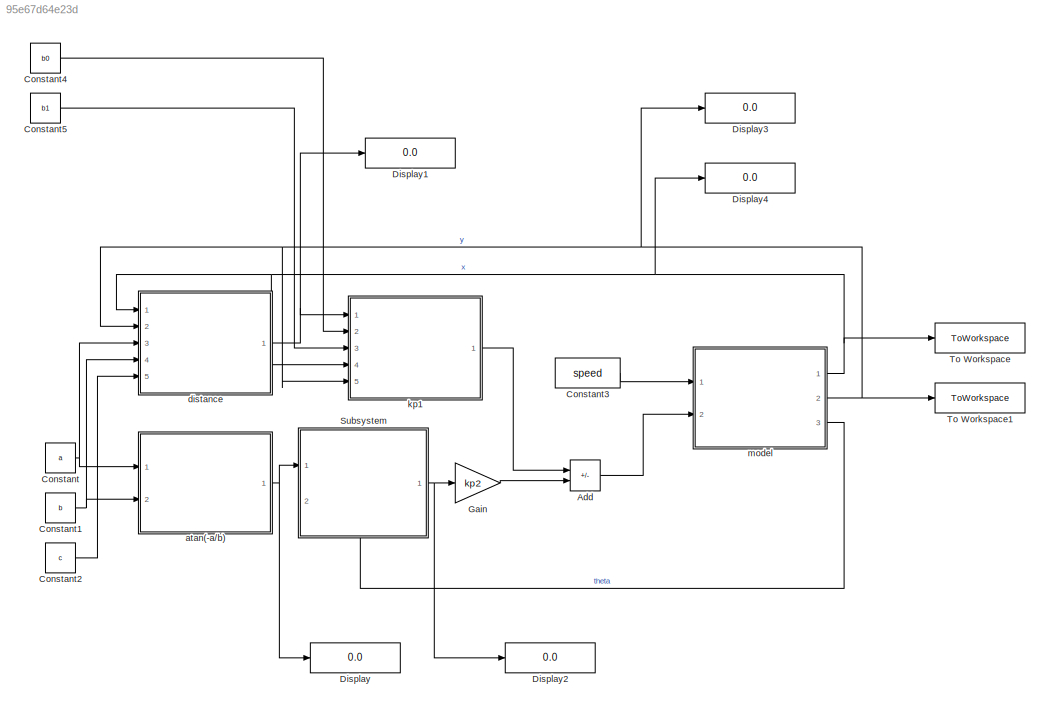
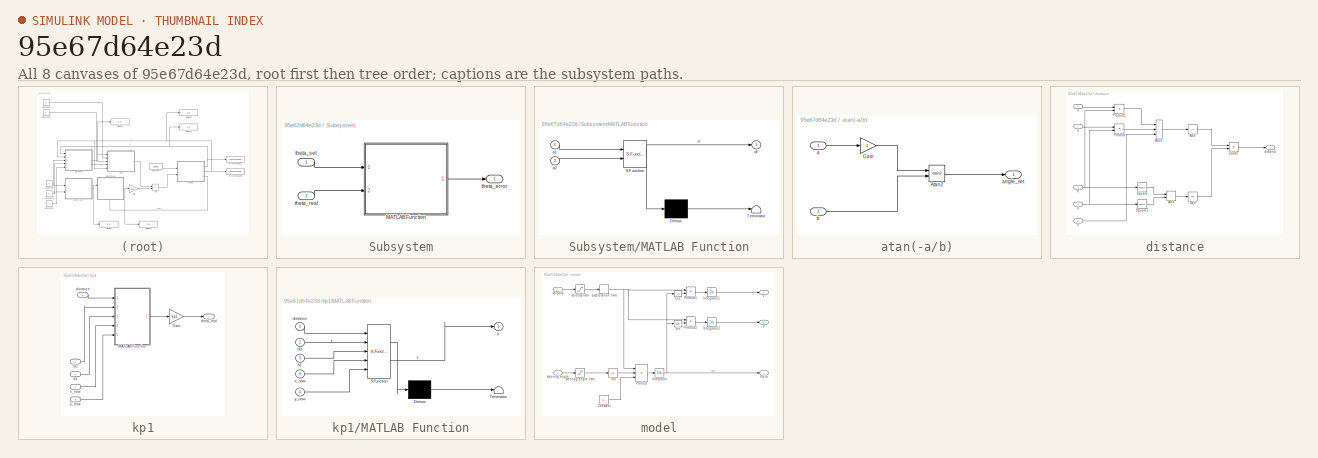
[diagram: thumbnail index - all 8 canvases of the model, root first then tree order]
MODEL slx_95e67d64e23d
KIND model
CONFIG AbsTol = auto
CONFIG EnableMultiTasking = off
CONFIG FixedStep = 0.1
CONFIG MaxStep = auto
CONFIG MinStep = auto
CONFIG RelTol = 1e-3
CONFIG SampleTimeConstraint = Unconstrained
CONFIG Solver = ode4
CONFIG SolverName = ode4
CONFIG StartTime = 0.0
CONFIG StopTime = 10.0
BLOCK [Sum] Add
  IconShape = rectangular
  Inputs = -+
  Ports = [2, 1]
BLOCK [Constant] Constant
  Value = a
BLOCK [Constant] Constant1
  Value = b
BLOCK [Constant] Constant2
  Value = c
BLOCK [Constant] Constant3
  Value = speed
BLOCK [Constant] Constant4
  Value = b0
BLOCK [Constant] Constant5
  Value = b1
BLOCK [Display] Display
  Decimation = 1
  Ports = [1]
BLOCK [Display] Display1
  Decimation = 1
  Ports = [1]
BLOCK [Display] Display2
  Decimation = 1
  Ports = [1]
BLOCK [Display] Display3
  Decimation = 1
  Ports = [1]
BLOCK [Display] Display4
  Decimation = 1
  Ports = [1]
BLOCK [Gain] Gain
  Gain = kp2
BLOCK [SubSystem] Subsystem
  PortSchema = {"entries":[{"content":{"sides":[{"content":{"connectorIds":["In1"]},"type":"ConnectorPlacement.EquallySpacedRectSide","uuid":"fc3d2d42-6b75-4455-93d0-24c477eba1e2"},{"content":{"connectorIds":["Out1"],"side":"RIGHT"},"type":"ConnectorPlacement.EquallySpacedRectSide","uuid":"640ab7b6-8e5c-42d1-9d7a-31c2e9c3df8c"},{"content":{"connectorIds":[],"side":"TOP"},"type":"ConnectorPlacement.EquallySpacedR...<+391ch>
  Ports = [2, 1]
  RequestExecContextInheritance = off
BLOCK [SubSystem] Subsystem/MATLAB Function
  ErrorFcn = Stateflow.Translate.translate
  PermitHierarchicalResolution = ExplicitOnly
  Ports = [2, 1]
  RequestExecContextInheritance = off
  SFBlockType = MATLAB Function
  TreatAsAtomicUnit = on
BLOCK [Demux] Subsystem/MATLAB Function/ Demux 
  Outputs = 1
  Ports = [1, 1]
BLOCK [S-Function] Subsystem/MATLAB Function/ SFunction 
  EnableBusSupport = on
  FunctionName = sf_sfun
  PortCounts = [2 2]
  Ports = [2, 2]
  SFcnIsStateOwnerBlock = off
  SFunctionDeploymentMode = off
  Tag = Stateflow S-Function 2
BLOCK [Terminator] Subsystem/MATLAB Function/ Terminator 
BLOCK [Inport] Subsystem/MATLAB Function/a1
BLOCK [Inport] Subsystem/MATLAB Function/a2
  Port = 2
BLOCK [Outport] Subsystem/MATLAB Function/af
BLOCK [Outport] Subsystem/theta_error
BLOCK [Inport] Subsystem/theta_real
  Port = 2
BLOCK [Inport] Subsystem/theta_set
BLOCK [ToWorkspace] To Workspace
  FixptAsFi = on
  MaxDataPoints = inf
  Ports = [1]
  SampleTime = -1
  Save2DSignal = 2-D array (concatenate along first dimension)
  VariableName = x
BLOCK [ToWorkspace] To Workspace1
  FixptAsFi = on
  MaxDataPoints = inf
  Ports = [1]
  SampleTime = -1
  Save2DSignal = 2-D array (concatenate along first dimension)
  VariableName = y
BLOCK [SubSystem] atan(-a//b)
  Ports = [2, 1]
  RequestExecContextInheritance = off
BLOCK [Trigonometry] atan(-a//b)/Atan2
  Operator = atan2
  OutputSignalType = real
  Ports = [2, 1]
BLOCK [Gain] atan(-a//b)/Gain
  Gain = -1
BLOCK [Inport] atan(-a//b)/a
BLOCK [Outport] atan(-a//b)/angle_set
BLOCK [Inport] atan(-a//b)/b
  Port = 2
BLOCK [SubSystem] distance
  Ports = [5, 1]
  RequestExecContextInheritance = off
BLOCK [Abs] distance/Abs
  SaturateOnIntegerOverflow = off
BLOCK [Sum] distance/Add
  IconShape = rectangular
  Ports = [2, 1]
BLOCK [Sum] distance/Add1
  IconShape = rectangular
  Inputs = +++
  Ports = [3, 1]
BLOCK [Product] distance/Divide
  Inputs = */
  Ports = [2, 1]
BLOCK [Product] distance/Product
  Ports = [2, 1]
BLOCK [Product] distance/Product1
  Ports = [2, 1]
BLOCK [Sqrt] distance/Sqrt
BLOCK [Math] distance/Square
  Operator = square
  Ports = [1, 1]
BLOCK [Math] distance/Square1
  Operator = square
  Ports = [1, 1]
BLOCK [Inport] distance/a
  Port = 3
BLOCK [Inport] distance/b
  Port = 4
BLOCK [Inport] distance/c
  Port = 5
BLOCK [Outport] distance/distance
BLOCK [Inport] distance/x
BLOCK [Inport] distance/y
  Port = 2
BLOCK [SubSystem] kp1
  Ports = [5, 1]
  RequestExecContextInheritance = off
BLOCK [Gain] kp1/Gain
  Gain = kp1
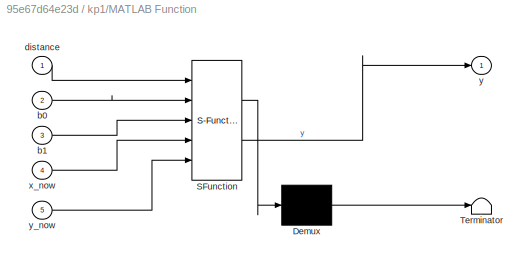
BLOCK [SubSystem] kp1/MATLAB Function
  ErrorFcn = Stateflow.Translate.translate
  PermitHierarchicalResolution = ExplicitOnly
  Ports = [5, 1]
  RequestExecContextInheritance = off
  SFBlockType = MATLAB Function
  TreatAsAtomicUnit = on
BLOCK [Demux] kp1/MATLAB Function/ Demux 
  Outputs = 1
  Ports = [1, 1]
BLOCK [S-Function] kp1/MATLAB Function/ SFunction 
  EnableBusSupport = on
  FunctionName = sf_sfun
  PortCounts = [5 2]
  Ports = [5, 2]
  SFcnIsStateOwnerBlock = off
  SFunctionDeploymentMode = off
  Tag = Stateflow S-Function 3
BLOCK [Terminator] kp1/MATLAB Function/ Terminator 
BLOCK [Inport] kp1/MATLAB Function/b0
  Port = 2
BLOCK [Inport] kp1/MATLAB Function/b1
  Port = 3
BLOCK [Inport] kp1/MATLAB Function/distance
BLOCK [Inport] kp1/MATLAB Function/x_now
  Port = 4
BLOCK [Outport] kp1/MATLAB Function/y
BLOCK [Inport] kp1/MATLAB Function/y_now
  Port = 5
BLOCK [Inport] kp1/b0
  Port = 2
BLOCK [Inport] kp1/b1
  Port = 3
BLOCK [Inport] kp1/distance
BLOCK [Outport] kp1/theta_real
BLOCK [Inport] kp1/x_now
  Port = 4
BLOCK [Inport] kp1/y_now
  Port = 5
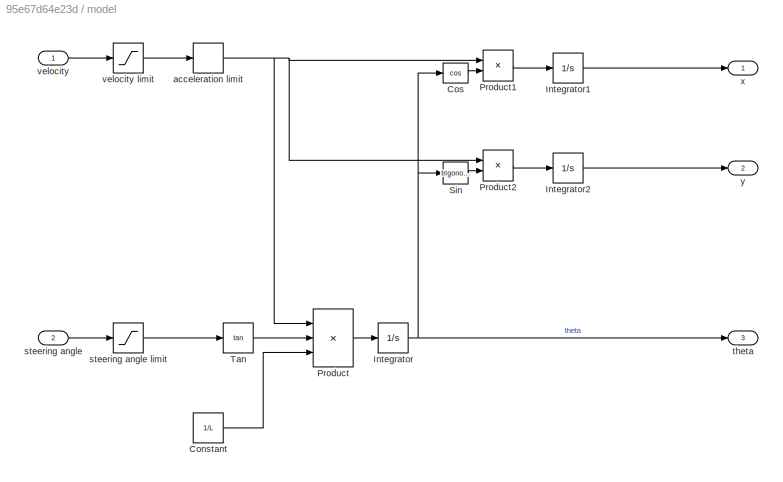
BLOCK [SubSystem] model
  Ports = [2, 3]
  RequestExecContextInheritance = off
BLOCK [Constant] model/Constant
  Value = 1/L
BLOCK [Trigonometry] model/Cos
  Operator = cos
  OutputSignalType = real
  Ports = [1, 1]
BLOCK [Integrator] model/Integrator
  InitialCondition = theta_start
  Ports = [1, 1]
BLOCK [Integrator] model/Integrator1
  InitialCondition = x_start
  Ports = [1, 1]
BLOCK [Integrator] model/Integrator2
  InitialCondition = y_start
  Ports = [1, 1]
BLOCK [Product] model/Product
  Inputs = 3
  Ports = [3, 1]
BLOCK [Product] model/Product1
  Ports = [2, 1]
BLOCK [Product] model/Product2
  Ports = [2, 1]
BLOCK [Trigonometry] model/Sin
  OutputSignalType = real
  Ports = [1, 1]
BLOCK [Trigonometry] model/Tan
  Operator = tan
  OutputSignalType = real
  Ports = [1, 1]
BLOCK [RateLimiter] model/acceleration limit
  SampleTimeMode = inherited
BLOCK [Inport] model/steering angle
  Port = 2
BLOCK [Saturate] model/steering angle limit
  LinearizeAsGain = off
  LowerLimit = -1
  UpperLimit = 1
BLOCK [Outport] model/theta
  Port = 3
BLOCK [Inport] model/velocity
BLOCK [Saturate] model/velocity limit
  LowerLimit = -2
  UpperLimit = 2
BLOCK [Outport] model/x
BLOCK [Outport] model/y
  Port = 2
LINE Add:1 -> model:2
NET Constant1:1 -> atan(-a//b):2, distance:4
LINE Constant2:1 -> distance:5
LINE Constant3:1 -> model:1
LINE Constant4:1 -> kp1:2
LINE Constant5:1 -> kp1:3
NET Constant:1 -> atan(-a//b):1, distance:3
LINE Gain:1 -> Add:2
LINE Subsystem/MATLAB Function:1 -> Subsystem/theta_error:1
LINE Subsystem/theta_real:1 -> Subsystem/MATLAB Function:2
LINE Subsystem/theta_set:1 -> Subsystem/MATLAB Function:1
NET Subsystem:1 -> Display2:1, Gain:1
LINE atan(-a//b)/Atan2:1 -> atan(-a//b)/angle_set:1
LINE atan(-a//b)/Gain:1 -> atan(-a//b)/Atan2:1
LINE atan(-a//b)/a:1 -> atan(-a//b)/Gain:1
LINE atan(-a//b)/b:1 -> atan(-a//b)/Atan2:2
NET atan(-a//b):1 -> Display:1, Subsystem:1
LINE distance/Abs:1 -> distance/Divide:1
LINE distance/Add1:1 -> distance/Abs:1
LINE distance/Add:1 -> distance/Sqrt:1
LINE distance/Divide:1 -> distance/distance:1
LINE distance/Product1:1 -> distance/Add1:1
LINE distance/Product:1 -> distance/Add1:2
LINE distance/Sqrt:1 -> distance/Divide:2
LINE distance/Square1:1 -> distance/Add:2
LINE distance/Square:1 -> distance/Add:1
NET distance/a:1 -> distance/Product1:2, distance/Square:1
NET distance/b:1 -> distance/Product:2, distance/Square1:1
LINE distance/c:1 -> distance/Add1:3
LINE distance/x:1 -> distance/Product1:1
LINE distance/y:1 -> distance/Product:1
NET distance:1 -> Display1:1, kp1:1
LINE kp1/Gain:1 -> kp1/theta_real:1
LINE kp1/MATLAB Function:1 -> kp1/Gain:1
LINE kp1/b0:1 -> kp1/MATLAB Function:2
LINE kp1/b1:1 -> kp1/MATLAB Function:3
LINE kp1/distance:1 -> kp1/MATLAB Function:1
LINE kp1/x_now:1 -> kp1/MATLAB Function:4
LINE kp1/y_now:1 -> kp1/MATLAB Function:5
LINE kp1:1 -> Add:1
LINE model/Constant:1 -> model/Product:3
LINE model/Cos:1 -> model/Product1:2
LINE model/Integrator1:1 -> model/x:1
LINE model/Integrator2:1 -> model/y:1
NET model/Integrator:1 -> model/Cos:1, model/Sin:1, model/theta:1
LINE model/Product1:1 -> model/Integrator1:1
LINE model/Product2:1 -> model/Integrator2:1
LINE model/Product:1 -> model/Integrator:1
LINE model/Sin:1 -> model/Product2:2
LINE model/Tan:1 -> model/Product:2
NET model/acceleration limit:1 -> model/Product1:1, model/Product2:1, model/Product:1
LINE model/steering angle limit:1 -> model/Tan:1
LINE model/steering angle:1 -> model/steering angle limit:1
LINE model/velocity limit:1 -> model/acceleration limit:1
LINE model/velocity:1 -> model/velocity limit:1
NET model:1 -> Display4:1, To Workspace:1, distance:1, kp1:4
NET model:2 -> Display3:1, To Workspace1:1, distance:2, kp1:5
LINE model:3 -> Subsystem:2
note: NET lines group one-source signal fan-out (src -> all destinations, sorted); 1:1 wires keep LINE
CHART Subsystem/MATLAB Function states=1 transitions=1
  STATE_LABEL 'eML_blk_kernel()'
  STATE_LABEL 'SCRIPT:\nfunction af=angdif2(a1,a2)   % radians angles version\n%\n%   input : a1, a2\n% output: af\na3=mod(a1-a2,2*pi);\naf= 0;\nq1=pi/2;\nq2=pi;\nq3=3*pi/2;\nq4=2*pi;\n\nif (0<a3)&&(a3<=q1)\n    af=a3;\nelseif (q1<a3)&&(a3<=q2) \n     af=a3;\nelseif (q2<a3)&&(a3<=q3) \n    af=a3-q4;\nelseif (q3<a3)&&(a3<=q4) \n    af= a3-q4;\nelseif (-q1<=a3)&&(a3<0)    \n    af=a3;\nelseif (-q2<=a3)&&(a3<-q1) \n    af=a3;\nelseif (-q3...<+114ch>'
CHART kp1/MATLAB Function states=1 transitions=1
  STATE_LABEL 'eML_blk_kernel()'
  STATE_LABEL 'SCRIPT:\nfunction y = fcn(distance, b0, b1, x_now, y_now)\n\n    f = @(x) b0*x+b1;\n\n    if y_now > f(x_now)\n        distance = distance * (-1);\n    end\n\ny = distance;\n'
CHART  states=0 transitions=0
CHART  states=0 transitions=0
